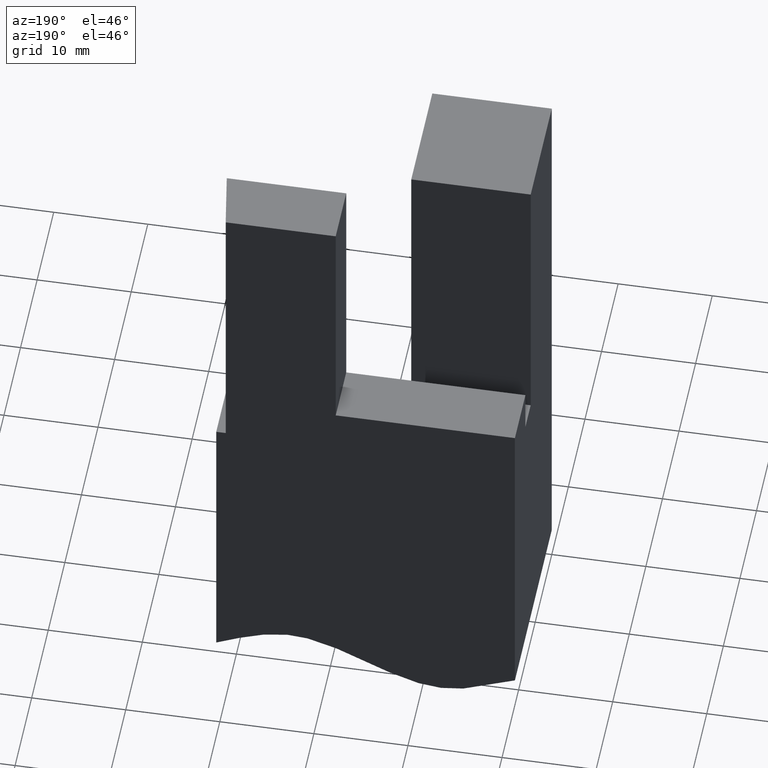
[diagram: clean part render]
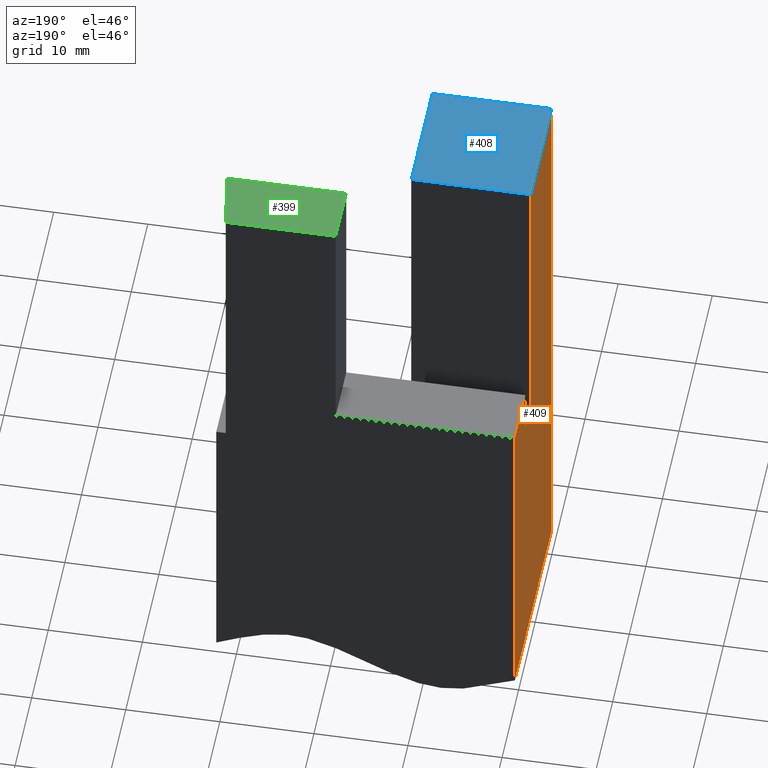
[diagram: same view with three faces highlighted in distinct colors, each labeled with its STEP entity id]
A machine part, auxiliary view with three faces highlighted in distinct colors.
Their STEP definitions:

[orange] entity #409 — the highlighted planar face has unit normal (-1, 0, 0).
#119=VECTOR('',#441,1.);
#128=VECTOR('',#452,1.);
#137=VECTOR('',#465,1.);
#138=VECTOR('',#466,1.);
#140=VECTOR('',#469,1.);
#143=VECTOR('',#475,1.);
#145=VECTOR('',#478,1.);
#146=VECTOR('',#479,1.);
#158=LINE('',#521,#119);
#167=LINE('',#539,#128);
#176=LINE('',#573,#137);
#177=LINE('',#597,#138);
#179=LINE('',#601,#140);
#182=LINE('',#607,#143);
#184=LINE('',#611,#145);
#185=LINE('',#612,#146);
#198=VERTEX_POINT('',#520);
#199=VERTEX_POINT('',#522);
#202=VERTEX_POINT('',#533);
#205=VERTEX_POINT('',#538);
#211=VERTEX_POINT('',#572);
#212=VERTEX_POINT('',#596);
#213=VERTEX_POINT('',#600);
#214=VERTEX_POINT('',#608);
#235=EDGE_CURVE('',#199,#198,#158,.T.);
#244=EDGE_CURVE('',#202,#205,#167,.T.);
#255=EDGE_CURVE('',#205,#211,#176,.T.);
#257=EDGE_CURVE('',#211,#212,#177,.T.);
#259=EDGE_CURVE('',#213,#212,#179,.T.);
#262=EDGE_CURVE('',#214,#199,#182,.T.);
#264=EDGE_CURVE('',#198,#202,#184,.T.);
#265=EDGE_CURVE('',#214,#213,#185,.T.);
#348=ORIENTED_EDGE('',*,*,#264,.T.);
#349=ORIENTED_EDGE('',*,*,#244,.T.);
#350=ORIENTED_EDGE('',*,*,#255,.T.);
#351=ORIENTED_EDGE('',*,*,#257,.T.);
#352=ORIENTED_EDGE('',*,*,#259,.F.);
#353=ORIENTED_EDGE('',*,*,#265,.F.);
#354=ORIENTED_EDGE('',*,*,#262,.T.);
#355=ORIENTED_EDGE('',*,*,#235,.T.);
#373=EDGE_LOOP('',(#348,#349,#350,#351,#352,#353,#354,#355));
#391=FACE_BOUND('',#373,.T.);
#409=ADVANCED_FACE('',(#391),#629,.T.);
#425=AXIS2_PLACEMENT_3D('',#613,#480,$);
#441=DIRECTION('',(0.,1.,0.));
#452=DIRECTION('',(0.,1.,0.));
#465=DIRECTION('',(0.,0.,-1.));
#466=DIRECTION('',(0.,-1.,0.));
#469=DIRECTION('',(0.,0.,-1.));
#475=DIRECTION('',(0.,0.,-1.));
#478=DIRECTION('',(0.,0.,1.));
#479=DIRECTION('',(0.,-1.,0.));
#480=DIRECTION('',(-1.,0.,0.));
#520=CARTESIAN_POINT('',(1.03154580240763E-14,0.625000000000019,-1.25));
#521=CARTESIAN_POINT('',(0.,0.479166666666671,-1.25));
#522=CARTESIAN_POINT('',(8.30481790073936E-15,0.500000000000019,-1.25));
#533=CARTESIAN_POINT('',(1.03154580240763E-14,0.625000000000019,-1.0625));
#538=CARTESIAN_POINT('',(1.95178083614109E-16,0.875,-1.0625));
#539=CARTESIAN_POINT('',(0.,0.65625,-1.0625));
#572=CARTESIAN_POINT('',(-8.39223703653661E-15,0.875,-2.49999999999995));
#573=CARTESIAN_POINT('',(0.,0.875,0.));
#596=CARTESIAN_POINT('',(-8.39223703653661E-15,0.,-2.49999999999995));
#597=CARTESIAN_POINT('',(-8.39223703653661E-15,-3.4741643059798,-2.49999999999995));
#600=CARTESIAN_POINT('',(0.,0.,0.));
#601=CARTESIAN_POINT('',(0.,0.,0.));
#607=CARTESIAN_POINT('',(0.,0.500000000000019,0.));
#608=CARTESIAN_POINT('',(-8.67864294575437E-16,0.5,0.));
#611=CARTESIAN_POINT('',(0.,0.625000000000019,0.));
#612=CARTESIAN_POINT('',(0.,0.875,0.));
#613=CARTESIAN_POINT('',(0.,0.4375,0.));
#629=PLANE('',#425);

[blue] entity #408 — the highlighted planar face has unit normal (0, 0, 1).
#114=VECTOR('',#434,1.);
#139=VECTOR('',#468,1.);
#144=VECTOR('',#476,1.);
#146=VECTOR('',#479,1.);
#153=LINE('',#506,#114);
#178=LINE('',#599,#139);
#183=LINE('',#609,#144);
#185=LINE('',#612,#146);
#191=VERTEX_POINT('',#496);
#194=VERTEX_POINT('',#505);
#213=VERTEX_POINT('',#600);
#214=VERTEX_POINT('',#608);
#229=EDGE_CURVE('',#191,#194,#153,.T.);
#258=EDGE_CURVE('',#213,#191,#178,.T.);
#263=EDGE_CURVE('',#194,#214,#183,.T.);
#265=EDGE_CURVE('',#214,#213,#185,.T.);
#344=ORIENTED_EDGE('',*,*,#229,.T.);
#345=ORIENTED_EDGE('',*,*,#263,.T.);
#346=ORIENTED_EDGE('',*,*,#265,.T.);
#347=ORIENTED_EDGE('',*,*,#258,.T.);
#372=EDGE_LOOP('',(#344,#345,#346,#347));
#390=FACE_BOUND('',#372,.T.);
#408=ADVANCED_FACE('',(#390),#621,.T.);
#417=AXIS2_PLACEMENT_3D('',#546,#457,$);
#434=DIRECTION('',(7.86772222175311E-15,1.,0.));
#457=DIRECTION('',(0.,0.,1.));
#468=DIRECTION('',(1.,1.04902962956708E-16,0.));
#476=DIRECTION('',(-1.,0.,0.));
#479=DIRECTION('',(0.,-1.,0.));
#496=CARTESIAN_POINT('',(0.499999999999992,1.83580185174238E-15,0.));
#505=CARTESIAN_POINT('',(0.499999999999996,0.5,0.));
#506=CARTESIAN_POINT('',(0.499999999999995,0.343750000000001,0.));
#546=CARTESIAN_POINT('',(0.625,0.4375,0.));
#599=CARTESIAN_POINT('',(0.,0.,0.));
#600=CARTESIAN_POINT('',(0.,0.,0.));
#608=CARTESIAN_POINT('',(-8.67864294575437E-16,0.5,0.));
#609=CARTESIAN_POINT('',(0.437499999999999,0.5,0.));
#612=CARTESIAN_POINT('',(0.,0.875,0.));
#621=PLANE('',#417);

[green] entity #399 — the highlighted planar face has unit normal (0, 0, 1).
#130=VECTOR('',#455,1.);
#132=VECTOR('',#458,1.);
#133=VECTOR('',#459,1.);
#134=VECTOR('',#460,1.);
#169=LINE('',#543,#130);
#171=LINE('',#547,#132);
#172=LINE('',#549,#133);
#173=LINE('',#551,#134);
#206=VERTEX_POINT('',#542);
#207=VERTEX_POINT('',#544);
#208=VERTEX_POINT('',#548);
#209=VERTEX_POINT('',#550);
#246=EDGE_CURVE('',#207,#206,#169,.T.);
#248=EDGE_CURVE('',#206,#208,#171,.T.);
#249=EDGE_CURVE('',#208,#209,#172,.T.);
#250=EDGE_CURVE('',#209,#207,#173,.T.);
#299=ORIENTED_EDGE('',*,*,#248,.T.);
#300=ORIENTED_EDGE('',*,*,#249,.T.);
#301=ORIENTED_EDGE('',*,*,#250,.T.);
#302=ORIENTED_EDGE('',*,*,#246,.T.);
#363=EDGE_LOOP('',(#299,#300,#301,#302));
#381=FACE_BOUND('',#363,.T.);
#399=ADVANCED_FACE('',(#381),#621,.T.);
#417=AXIS2_PLACEMENT_3D('',#546,#457,$);
#455=DIRECTION('',(0.,-1.,0.));
#457=DIRECTION('',(0.,0.,1.));
#458=DIRECTION('',(1.,-1.54557032089551E-14,0.));
#459=DIRECTION('',(-0.156434465040235,0.987688340595137,0.));
#460=DIRECTION('',(-1.,0.,0.));
#542=CARTESIAN_POINT('',(0.749999999999996,0.624999999999996,0.));
#543=CARTESIAN_POINT('',(0.749999999999996,0.593749999999999,0.));
#544=CARTESIAN_POINT('',(0.749999999999996,0.875,0.));
#546=CARTESIAN_POINT('',(0.625,0.4375,0.));
#547=CARTESIAN_POINT('',(0.625000000000004,0.62500000000001,0.));
#548=CARTESIAN_POINT('',(1.25,0.625,0.));
#549=CARTESIAN_POINT('',(1.24693872476216,0.644328131169751,0.));
#550=CARTESIAN_POINT('',(1.21040388991886,0.875,0.));
#551=CARTESIAN_POINT('',(1.25,0.875,0.));
#621=PLANE('',#417);